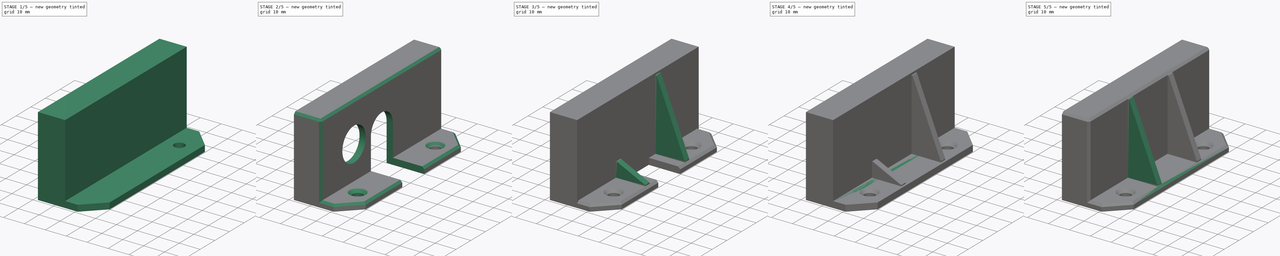
[diagram: build sequence overview — one tinted view per stage of 5, left to right]
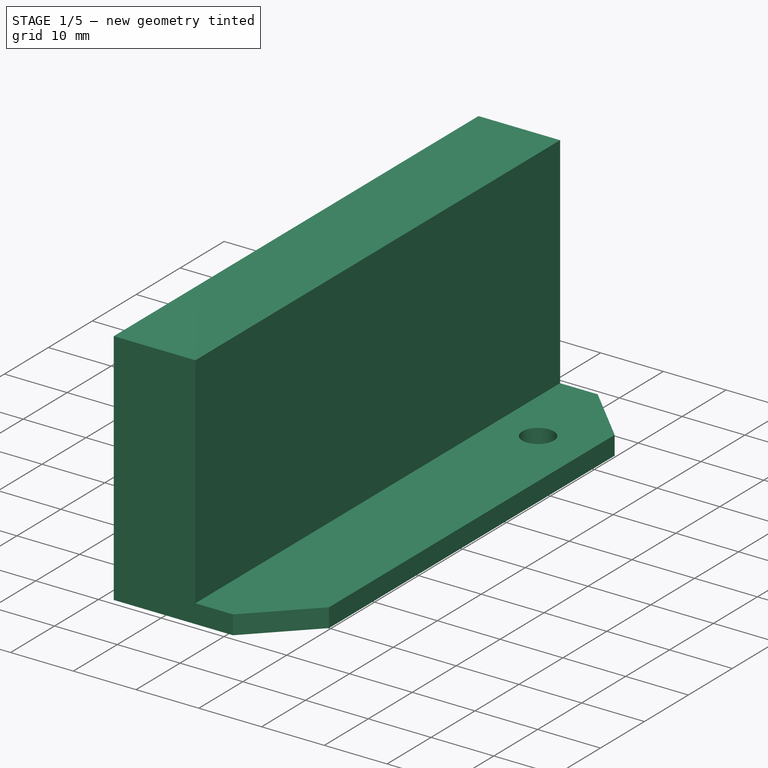
[diagram: stage 1 of 5 — iso view after this stage's code; geometry added in this stage tinted green]
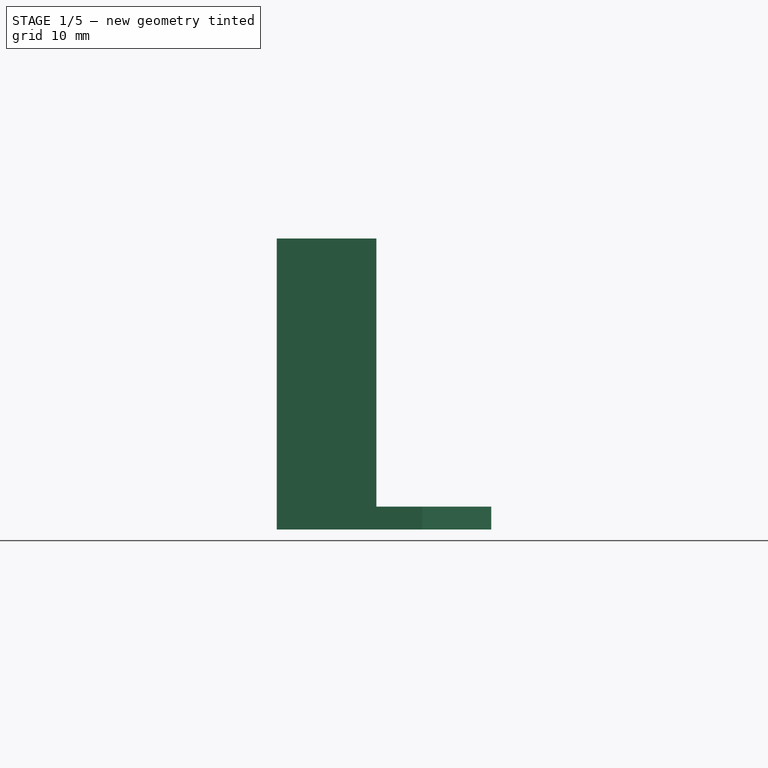
[diagram: stage 1 of 5 — front view after this stage's code; geometry added in this stage tinted green]
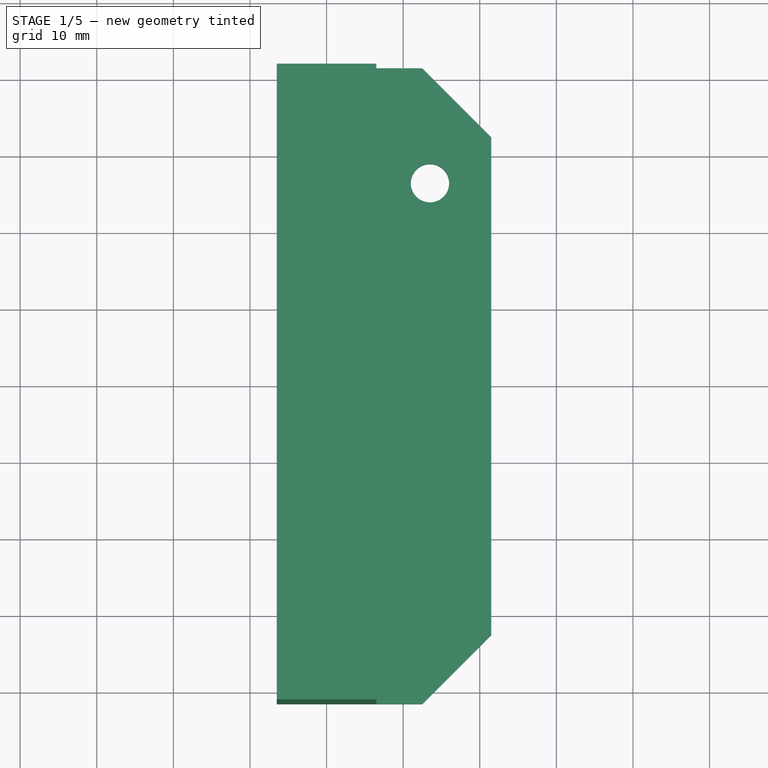
[diagram: stage 1 of 5 — top view after this stage's code; geometry added in this stage tinted green]
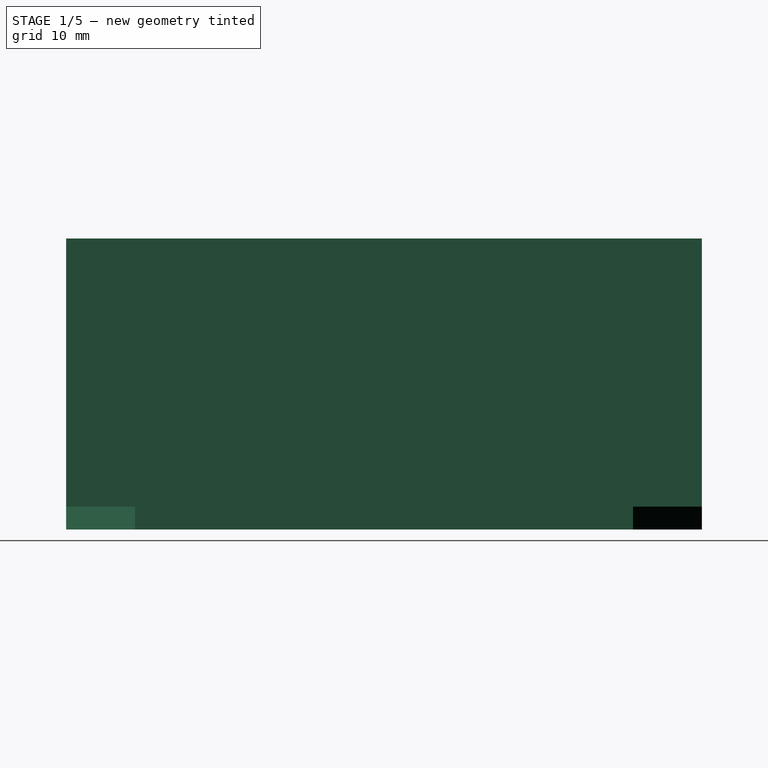
[diagram: stage 1 of 5 — right view after this stage's code; geometry added in this stage tinted green]
FCSTD DOCUMENT  (FreeCAD 0.21R33383 (Git))
Label: powerboard mount
License: All rights reserved
LicenseURL: https://en.wikipedia.org/wiki/All_rights_reserved
objects: Sketcher::SketchObject×12, PartDesign::Chamfer×11, PartDesign::Pad×6, PartDesign::Pocket×6, PartDesign::Mirrored×2, PartDesign::Body×2
note: 62 computed .brp shape members not serialized (recipe doc carries the construction recipe); baked Part::Feature solids carry a one-line shape summary decoded from their .brp

FEATURE [Sketcher::SketchObject] Sketch
  FullyConstrained = true
  MapMode = 5
  Support = -> [XY_Plane]
  sketch-geometry (4):
    g0: LineSegment StartX=-6.5 StartY=41.5 StartZ=0 EndX=6.5 EndY=41.5 EndZ=0
    g1: LineSegment StartX=6.5 StartY=41.5 StartZ=0 EndX=6.5 EndY=-41.5 EndZ=0
    g2: LineSegment StartX=6.5 StartY=-41.5 StartZ=0 EndX=-6.5 EndY=-41.5 EndZ=0
    g3: LineSegment StartX=-6.5 StartY=-41.5 StartZ=0 EndX=-6.5 EndY=41.5 EndZ=0
  constraints (11):
    c: Coincident(g0,g1)
    c: Coincident(g1,g2)
    c: Coincident(g2,g3)
    c: Coincident(g3,g0)
    c: Horizontal(g0)
    c: Horizontal(g2)
    c: Vertical(g1)
    c: Vertical(g3)
    c: DistanceY(g1,g1) = 83
    c: DistanceX(g0,g0) = 13
    c: Symmetric(g0,g1,g-1)
FEATURE [PartDesign::Pad] Pad
  Direction = (0,0,1)
  Length = 38
  Length2 = 10
  Profile = -> Sketch
  ReferenceAxis = -> Sketch [N_Axis]
  Type = 0
FEATURE [Sketcher::SketchObject] Sketch001
  ExternalGeometry = -> [Pad]
  FullyConstrained = true
  MapMode = 5
  Placement = pos=(0,0,0) rot=(1,0,0;3.14159rad)
  Support = -> [Pad]
  sketch-geometry (4):
    g0: LineSegment StartX=-6.5 StartY=38 StartZ=0 EndX=3.5 EndY=38 EndZ=0
    g1: LineSegment StartX=3.5 StartY=38 StartZ=0 EndX=3.5 EndY=-38 EndZ=0
    g2: LineSegment StartX=3.5 StartY=-38 StartZ=0 EndX=-6.5 EndY=-38 EndZ=0
    g3: LineSegment StartX=-6.5 StartY=-38 StartZ=0 EndX=-6.5 EndY=38 EndZ=0
  constraints (11):
    c: Coincident(g0,g1)
    c: Coincident(g1,g2)
    c: Coincident(g2,g3)
    c: Coincident(g3,g0)
    c: Horizontal(g0)
    c: Horizontal(g2)
    c: Vertical(g1)
    c: PointOnObject(g0,g-3)
    c: DistanceY(g1,g1) = 76
    c: DistanceX(g2,g2) = 10
    c: Symmetric(g0,g2,g-1)
FEATURE [PartDesign::Pocket] Pocket
  BaseFeature = -> Pad
  Direction = (0,0,1)
  Length = 35
  Length2 = 5
  Profile = -> Sketch001
  ReferenceAxis = -> Sketch001 [N_Axis]
  Type = 0
FEATURE [Sketcher::SketchObject] Sketch002
  ExternalGeometry = -> [Pocket]
  FullyConstrained = true
  MapMode = 5
  Placement = pos=(6.5,0,0) rot=(0.57735,0.57735,0.57735;2.0944rad)
  Support = -> [Pocket]
  sketch-geometry (4):
    g0: LineSegment StartX=-41.5 StartY=0 StartZ=0 EndX=41.5 EndY=0 EndZ=0
    g1: LineSegment StartX=41.5 StartY=0 StartZ=0 EndX=41.5 EndY=3 EndZ=0
    g2: LineSegment StartX=41.5 StartY=3 StartZ=0 EndX=-41.5 EndY=3 EndZ=0
    g3: LineSegment StartX=-41.5 StartY=3 StartZ=0 EndX=-41.5 EndY=0 EndZ=0
  constraints (11):
    c: Coincident(g0,g1)
    c: Coincident(g1,g2)
    c: Coincident(g2,g3)
    c: Coincident(g3,g0)
    c: Horizontal(g0)
    c: Horizontal(g2)
    c: Vertical(g1)
    c: Vertical(g3)
    c: Coincident(g0,g-3)
    c: PointOnObject(g1,g-4)
    c: DistanceY(g3,g3) = 3
FEATURE [PartDesign::Pad] Pad001
  BaseFeature = -> Pocket
  Direction = (1,0,0)
  Length = 15
  Length2 = 10
  Profile = -> Sketch002
  ReferenceAxis = -> Sketch002 [N_Axis]
  Type = 0
FEATURE [PartDesign::Chamfer] Chamfer
  Angle = 45
  Base = -> Pad001 [Edge35,Edge15]
  BaseFeature = -> Pad001
  ChamferType = 0
  FlipDirection = false
  Size = 9
  Size2 = 1
  SupportTransform = false
  UseAllEdges = false
FEATURE [Sketcher::SketchObject] Sketch003
  ExternalGeometry = -> [Chamfer]
  FullyConstrained = true
  MapMode = 5
  Placement = pos=(0,0,3) rot=(0,0,1;0rad)
  Support = -> [Chamfer]
  sketch-geometry (1):
    g0: Circle CenterX=13.5 CenterY=26.5 CenterZ=0 NormalX=0 NormalY=0 NormalZ=1 AngleXU=0 Radius=2.5
  constraints (3):
    c: DistanceX(g0,g-3) = 8
    c: DistanceY(g0,g-4) = 15
    c: Diameter(g0) = 5
FEATURE [PartDesign::Pocket] Pocket001
  BaseFeature = -> Chamfer
  Direction = (0,0,-1)
  Length = 5
  Length2 = 5
  Profile = -> Sketch003
  ReferenceAxis = -> Sketch003 [N_Axis]
  Type = 0
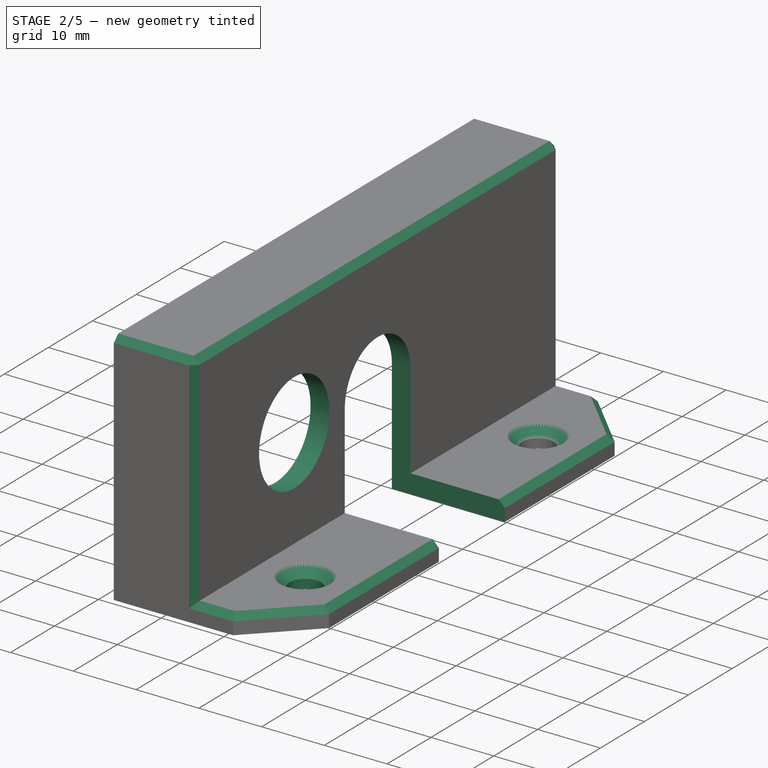
[diagram: stage 2 of 5 — iso view after this stage's code; geometry added in this stage tinted green]
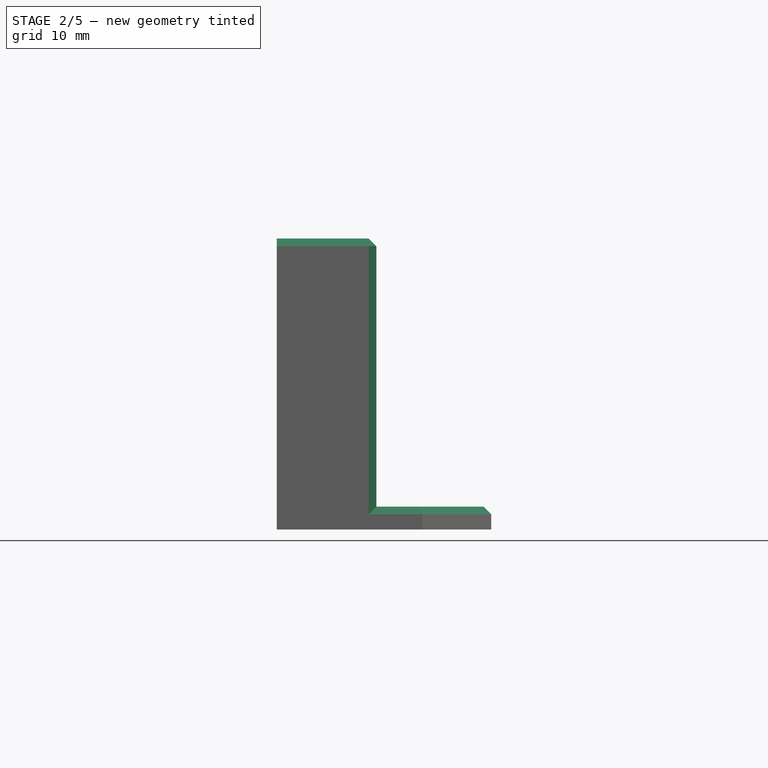
[diagram: stage 2 of 5 — front view after this stage's code; geometry added in this stage tinted green]
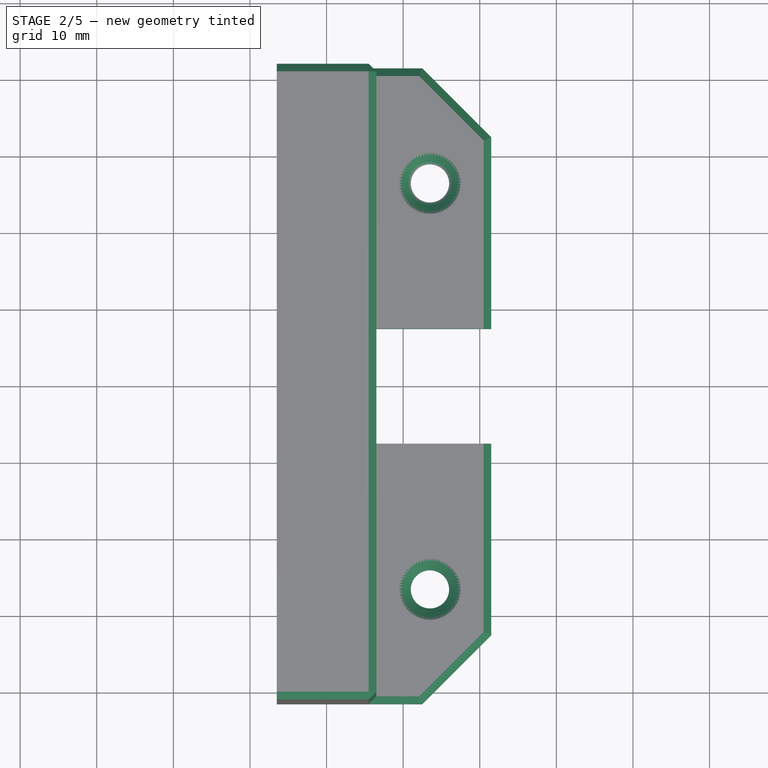
[diagram: stage 2 of 5 — top view after this stage's code; geometry added in this stage tinted green]
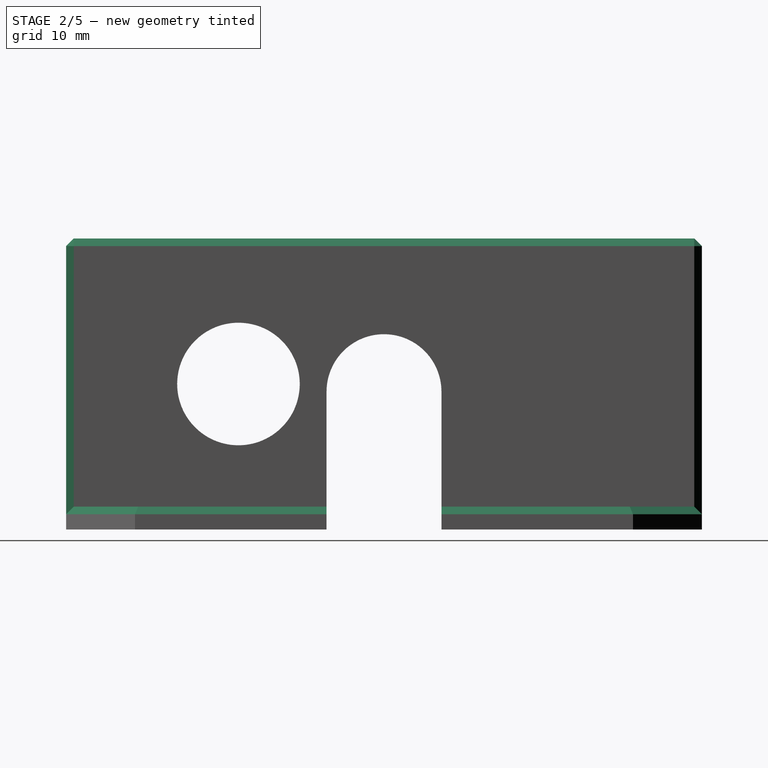
[diagram: stage 2 of 5 — right view after this stage's code; geometry added in this stage tinted green]
FEATURE [PartDesign::Chamfer] Chamfer001
  Angle = 45
  Base = -> Pocket001 [Edge21]
  BaseFeature = -> Pocket001
  ChamferType = 0
  FlipDirection = false
  Size = 1.5
  Size2 = 1
  SupportTransform = false
  UseAllEdges = false
FEATURE [PartDesign::Mirrored] Mirrored
  BaseFeature = -> Chamfer001
  MirrorPlane = -> XZ_Plane
  Originals = -> [Chamfer001,Pocket001]
FEATURE [PartDesign::Chamfer] Chamfer002
  Angle = 45
  Base = -> Mirrored [Edge35,Edge32,Edge15,Edge16,Edge14]
  BaseFeature = -> Mirrored
  ChamferType = 0
  FlipDirection = false
  Size = 1
  Size2 = 1
  SupportTransform = false
  UseAllEdges = false
FEATURE [PartDesign::Chamfer] Chamfer003
  Angle = 45
  Base = -> Chamfer002 [Edge8,Edge7,Edge6,Edge5,Edge4]
  BaseFeature = -> Chamfer002
  ChamferType = 0
  FlipDirection = false
  Size = 1
  Size2 = 1
  SupportTransform = false
  UseAllEdges = false
FEATURE [Sketcher::SketchObject] Sketch010
  ExternalGeometry = -> [Chamfer003]
  FullyConstrained = true
  MapMode = 5
  Placement = pos=(21.5,0,0) rot=(0.57735,0.57735,0.57735;2.0944rad)
  Support = -> [Chamfer003]
  sketch-geometry (5):
    g0: LineSegment StartX=-7.5 StartY=0 StartZ=0 EndX=7.5 EndY=0 EndZ=0
    g1: LineSegment StartX=7.5 StartY=0 StartZ=0 EndX=7.5 EndY=18 EndZ=0
    g2: LineSegment StartX=-7.5 StartY=18 StartZ=0 EndX=-7.5 EndY=0 EndZ=0
    g3: Circle CenterX=-19 CenterY=19 CenterZ=0 NormalX=0 NormalY=0 NormalZ=1 AngleXU=0 Radius=8
    g4: ArcOfCircle CenterX=3e-16 CenterY=18 CenterZ=0 NormalX=0 NormalY=0 NormalZ=1 AngleXU=0 Radius=7.5 StartAngle=2.88007e-09 EndAngle=3.14159
  constraints (15):
    c: Coincident(g0,g1)
    c: Coincident(g2,g0)
    c: Horizontal(g0)
    c: PointOnObject(g0,g-3)
    c: Diameter(g3) = 16
    c: DistanceY(g-3,g3) = 19
    c: Vertical(g1)
    c: Vertical(g2)
    c: Symmetric(g2,g1,g-2)
    c: DistanceX(g0,g0) = 15
    c: Coincident(g4,g2)
    c: Coincident(g4,g1)
    c: DistanceY(g1,g1) = 18
    c: Radius(g4) = 7.5
    c: DistanceX(g3,g4) = 19
FEATURE [PartDesign::Pocket] Pocket005
  BaseFeature = -> Chamfer003
  Direction = (-1,0,0)
  Length = 5
  Length2 = 5
  Profile = -> Sketch010
  ReferenceAxis = -> Sketch010 [N_Axis]
  Type = 1
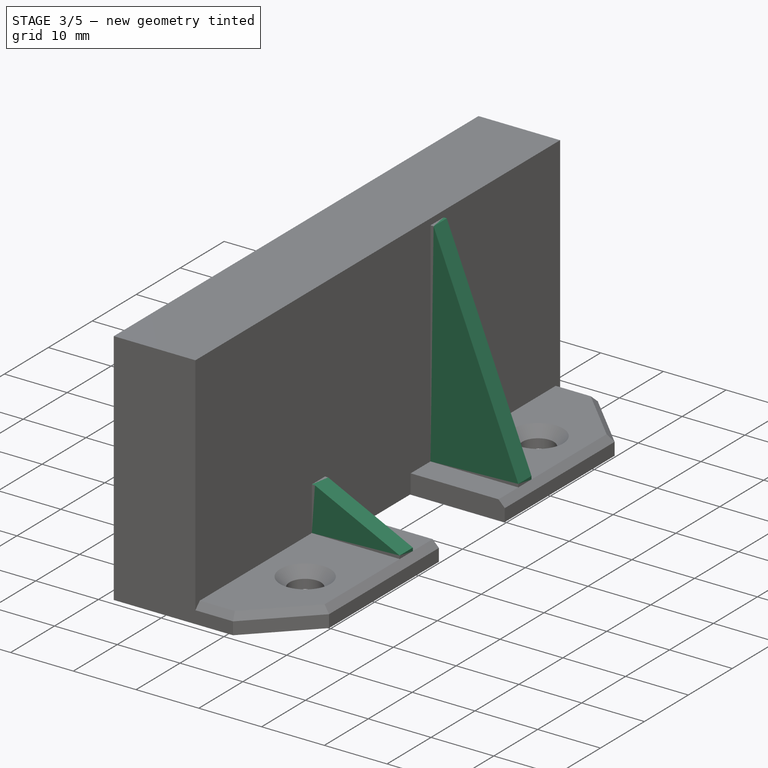
[diagram: stage 3 of 5 — iso view after this stage's code; geometry added in this stage tinted green]
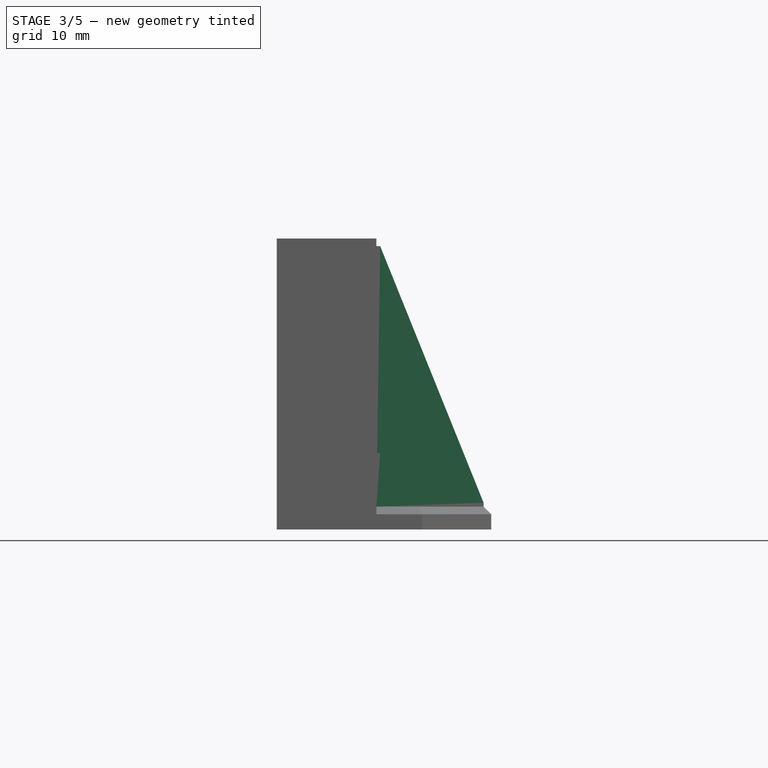
[diagram: stage 3 of 5 — front view after this stage's code; geometry added in this stage tinted green]
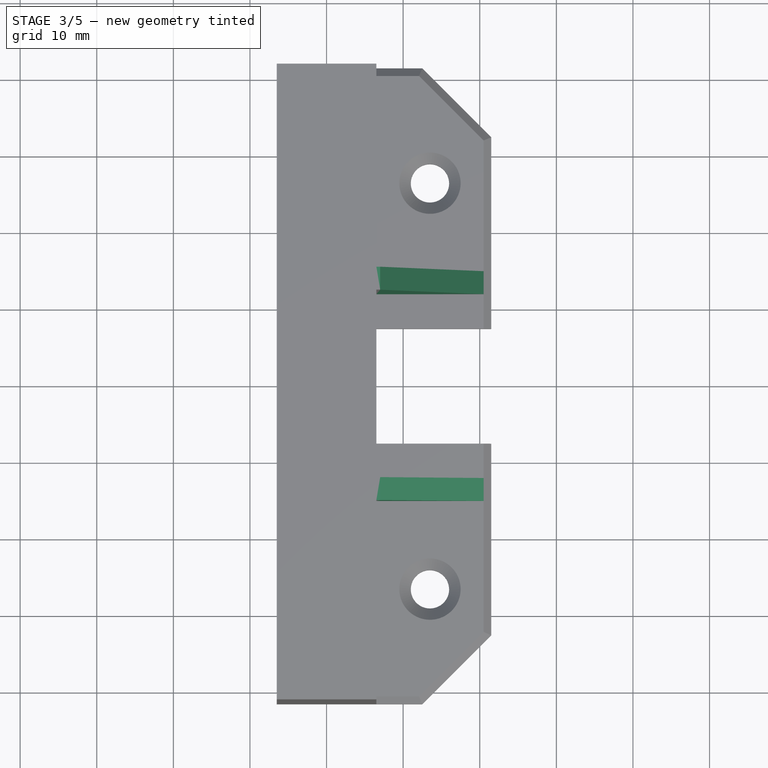
[diagram: stage 3 of 5 — top view after this stage's code; geometry added in this stage tinted green]
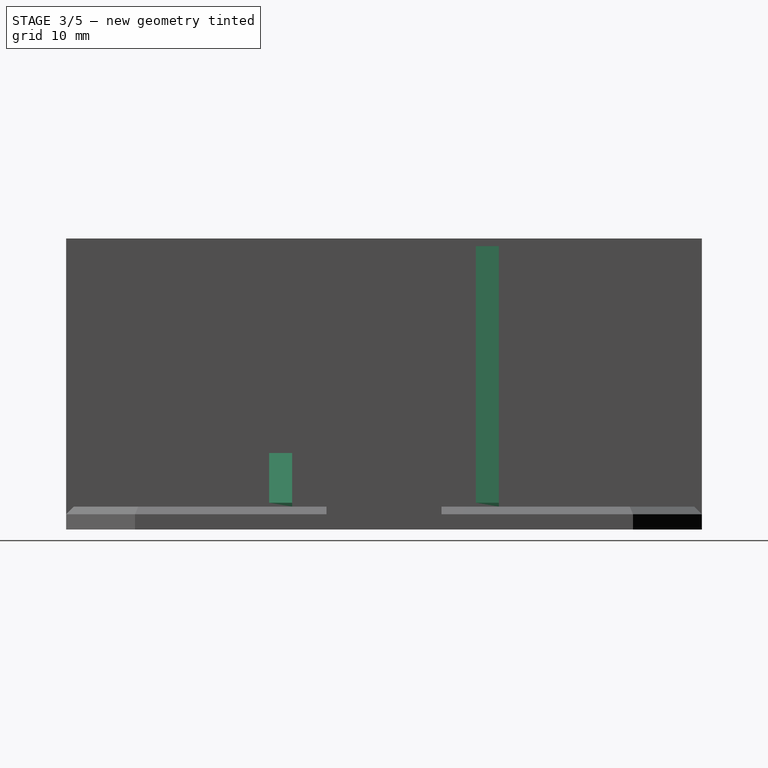
[diagram: stage 3 of 5 — right view after this stage's code; geometry added in this stage tinted green]
FEATURE [Sketcher::SketchObject] Sketch004
  FullyConstrained = true
  MapMode = 5
  Support = -> [XY_Plane001]
  sketch-geometry (4):
    g0: LineSegment StartX=-6.5 StartY=41.5 StartZ=0 EndX=6.5 EndY=41.5 EndZ=0
    g1: LineSegment StartX=6.5 StartY=41.5 StartZ=0 EndX=6.5 EndY=-41.5 EndZ=0
    g2: LineSegment StartX=6.5 StartY=-41.5 StartZ=0 EndX=-6.5 EndY=-41.5 EndZ=0
    g3: LineSegment StartX=-6.5 StartY=-41.5 StartZ=0 EndX=-6.5 EndY=41.5 EndZ=0
  constraints (11):
    c: Coincident(g0,g1)
    c: Coincident(g1,g2)
    c: Coincident(g2,g3)
    c: Coincident(g3,g0)
    c: Horizontal(g0)
    c: Horizontal(g2)
    c: Vertical(g1)
    c: Vertical(g3)
    c: DistanceY(g1,g1) = 83
    c: DistanceX(g0,g0) = 13
    c: Symmetric(g0,g1,g-1)
FEATURE [PartDesign::Pad] Pad002
  Direction = (0,0,1)
  Length = 38
  Length2 = 10
  Profile = -> Sketch004
  ReferenceAxis = -> Sketch004 [N_Axis]
  Type = 0
FEATURE [Sketcher::SketchObject] Sketch005
  ExternalGeometry = -> [Pad002]
  FullyConstrained = true
  MapMode = 5
  Placement = pos=(0,0,0) rot=(1,0,0;3.14159rad)
  Support = -> [Pad002]
  sketch-geometry (4):
    g0: LineSegment StartX=-6.5 StartY=38 StartZ=0 EndX=3.5 EndY=38 EndZ=0
    g1: LineSegment StartX=3.5 StartY=38 StartZ=0 EndX=3.5 EndY=-38 EndZ=0
    g2: LineSegment StartX=3.5 StartY=-38 StartZ=0 EndX=-6.5 EndY=-38 EndZ=0
    g3: LineSegment StartX=-6.5 StartY=-38 StartZ=0 EndX=-6.5 EndY=38 EndZ=0
  constraints (11):
    c: Coincident(g0,g1)
    c: Coincident(g1,g2)
    c: Coincident(g2,g3)
    c: Coincident(g3,g0)
    c: Horizontal(g0)
    c: Horizontal(g2)
    c: Vertical(g1)
    c: PointOnObject(g0,g-3)
    c: DistanceY(g1,g1) = 76
    c: DistanceX(g2,g2) = 10
    c: Symmetric(g0,g2,g-1)
FEATURE [PartDesign::Pocket] Pocket002
  BaseFeature = -> Pad002
  Direction = (0,0,1)
  Length = 35
  Length2 = 5
  Profile = -> Sketch005
  ReferenceAxis = -> Sketch005 [N_Axis]
  Type = 0
FEATURE [PartDesign::Body] Body001
  Group = -> [Sketch004,Pad002,Sketch005,Pocket002,Sketch006,Pad003,Chamfer004,Sketch007,Pocket003,Chamfer005,Mirrored001,Chamfer006,Chamfer007,Sketch008,Pocket004,Sketch009,Pad004,Chamfer008]
  Origin = -> Origin001
  Tip = -> Chamfer008
FEATURE [PartDesign::Pad] Pad005
  BaseFeature = -> Pocket005
  Direction = (1,0,0)
  Length = 14
  Length2 = 10
  Profile = -> Sketch011
  ReferenceAxis = -> Sketch011 [N_Axis]
  Type = 0
FEATURE [PartDesign::Chamfer] Chamfer009
  Angle = 45
  Base = -> Pad005 [Edge105]
  BaseFeature = -> Pad005
  ChamferType = 1
  FlipDirection = false
  Size = 13.5
  Size2 = 33.5
  SupportTransform = false
  UseAllEdges = false
FEATURE [PartDesign::Chamfer] Chamfer010
  Angle = 45
  Base = -> Chamfer009 [Edge52]
  BaseFeature = -> Chamfer009
  ChamferType = 1
  FlipDirection = false
  Size = 13.5
  Size2 = 6.5
  SupportTransform = false
  UseAllEdges = false
FEATURE [PartDesign::Body] Body
  Group = -> [Sketch,Pad,Sketch001,Pocket,Sketch002,Pad001,Chamfer,Sketch003,Pocket001,Chamfer001,Mirrored,Chamfer002,Chamfer003,Sketch010,Pocket005,Sketch011,Pad005,Chamfer009,Chamfer010]
  Origin = -> Origin
  Tip = -> Chamfer010
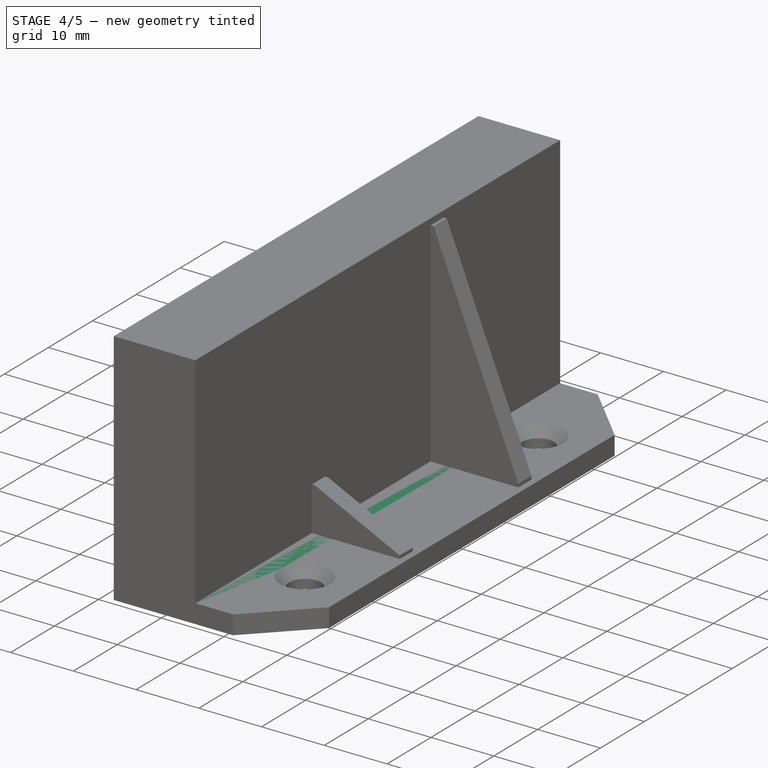
[diagram: stage 4 of 5 — iso view after this stage's code; geometry added in this stage tinted green]
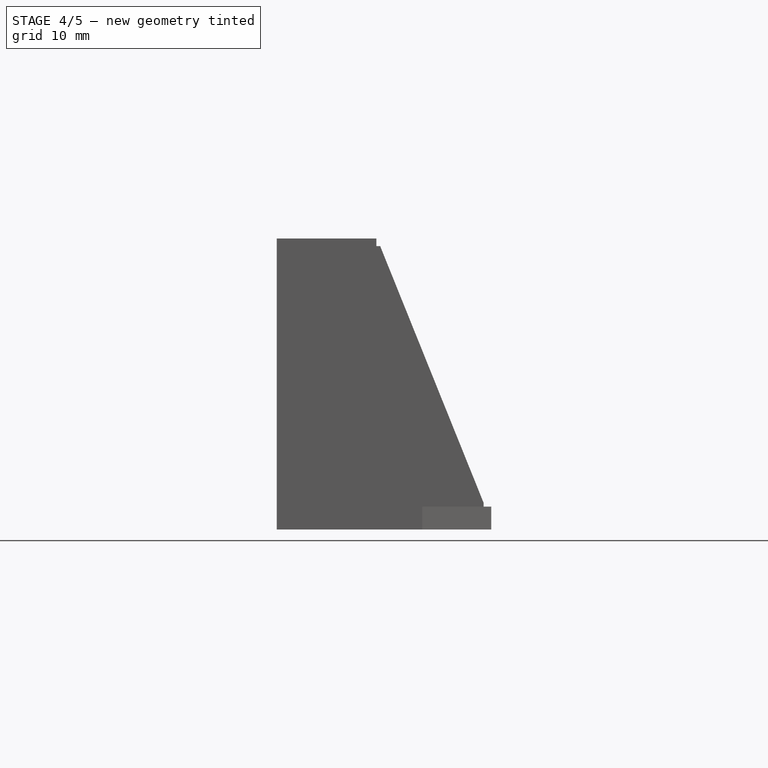
[diagram: stage 4 of 5 — front view after this stage's code; geometry added in this stage tinted green]
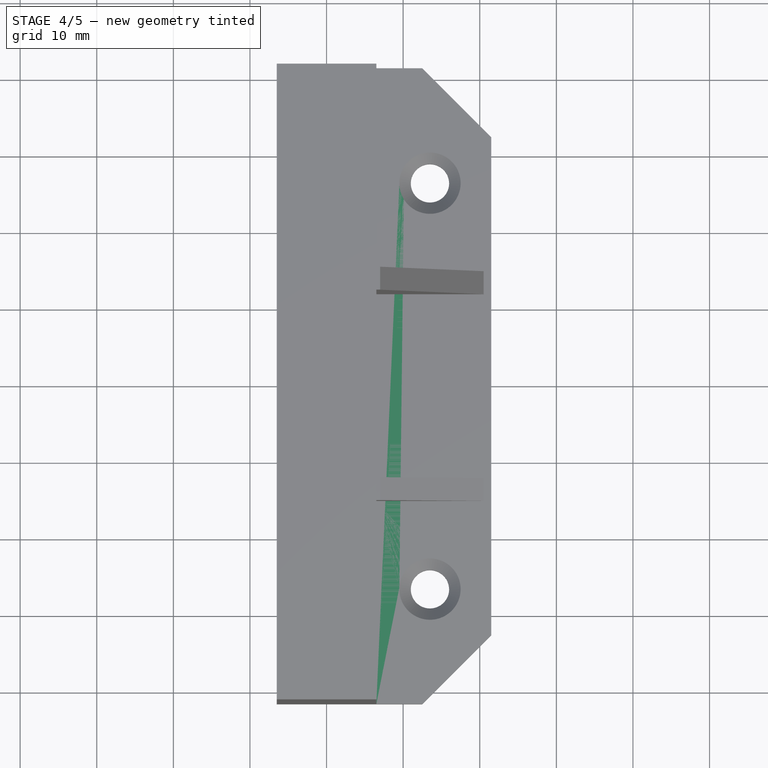
[diagram: stage 4 of 5 — top view after this stage's code; geometry added in this stage tinted green]
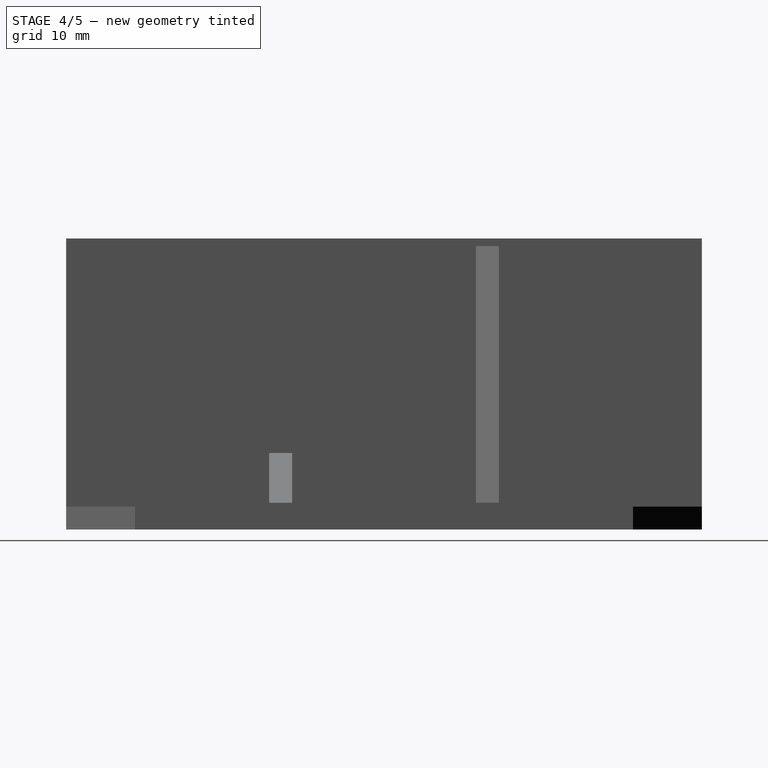
[diagram: stage 4 of 5 — right view after this stage's code; geometry added in this stage tinted green]
FEATURE [Sketcher::SketchObject] Sketch006
  ExternalGeometry = -> [Pocket002]
  FullyConstrained = true
  MapMode = 5
  Placement = pos=(6.5,0,0) rot=(0.57735,0.57735,0.57735;2.0944rad)
  Support = -> [Pocket002]
  sketch-geometry (4):
    g0: LineSegment StartX=-41.5 StartY=0 StartZ=0 EndX=41.5 EndY=0 EndZ=0
    g1: LineSegment StartX=41.5 StartY=0 StartZ=0 EndX=41.5 EndY=3 EndZ=0
    g2: LineSegment StartX=41.5 StartY=3 StartZ=0 EndX=-41.5 EndY=3 EndZ=0
    g3: LineSegment StartX=-41.5 StartY=3 StartZ=0 EndX=-41.5 EndY=0 EndZ=0
  constraints (11):
    c: Coincident(g0,g1)
    c: Coincident(g1,g2)
    c: Coincident(g2,g3)
    c: Coincident(g3,g0)
    c: Horizontal(g0)
    c: Horizontal(g2)
    c: Vertical(g1)
    c: Vertical(g3)
    c: Coincident(g0,g-3)
    c: PointOnObject(g1,g-4)
    c: DistanceY(g3,g3) = 3
FEATURE [PartDesign::Pad] Pad003
  BaseFeature = -> Pocket002
  Direction = (1,0,0)
  Length = 15
  Length2 = 10
  Profile = -> Sketch006
  ReferenceAxis = -> Sketch006 [N_Axis]
  Type = 0
FEATURE [PartDesign::Chamfer] Chamfer004
  Angle = 45
  Base = -> Pad003 [Edge35,Edge15]
  BaseFeature = -> Pad003
  ChamferType = 0
  FlipDirection = false
  Size = 9
  Size2 = 1
  SupportTransform = false
  UseAllEdges = false
FEATURE [Sketcher::SketchObject] Sketch007
  ExternalGeometry = -> [Chamfer004]
  FullyConstrained = true
  MapMode = 5
  Placement = pos=(0,0,3) rot=(0,0,1;0rad)
  Support = -> [Chamfer004]
  sketch-geometry (1):
    g0: Circle CenterX=13.5 CenterY=26.5 CenterZ=0 NormalX=0 NormalY=0 NormalZ=1 AngleXU=0 Radius=2.5
  constraints (3):
    c: DistanceX(g0,g-3) = 8
    c: DistanceY(g0,g-4) = 15
    c: Diameter(g0) = 5
FEATURE [PartDesign::Pocket] Pocket003
  BaseFeature = -> Chamfer004
  Direction = (0,0,-1)
  Length = 5
  Length2 = 5
  Profile = -> Sketch007
  ReferenceAxis = -> Sketch007 [N_Axis]
  Type = 0
FEATURE [PartDesign::Chamfer] Chamfer005
  Angle = 45
  Base = -> Pocket003 [Edge21]
  BaseFeature = -> Pocket003
  ChamferType = 0
  FlipDirection = false
  Size = 1.5
  Size2 = 1
  SupportTransform = false
  UseAllEdges = false
FEATURE [PartDesign::Mirrored] Mirrored001
  BaseFeature = -> Chamfer005
  MirrorPlane = -> XZ_Plane001
  Originals = -> [Chamfer005,Pocket003]
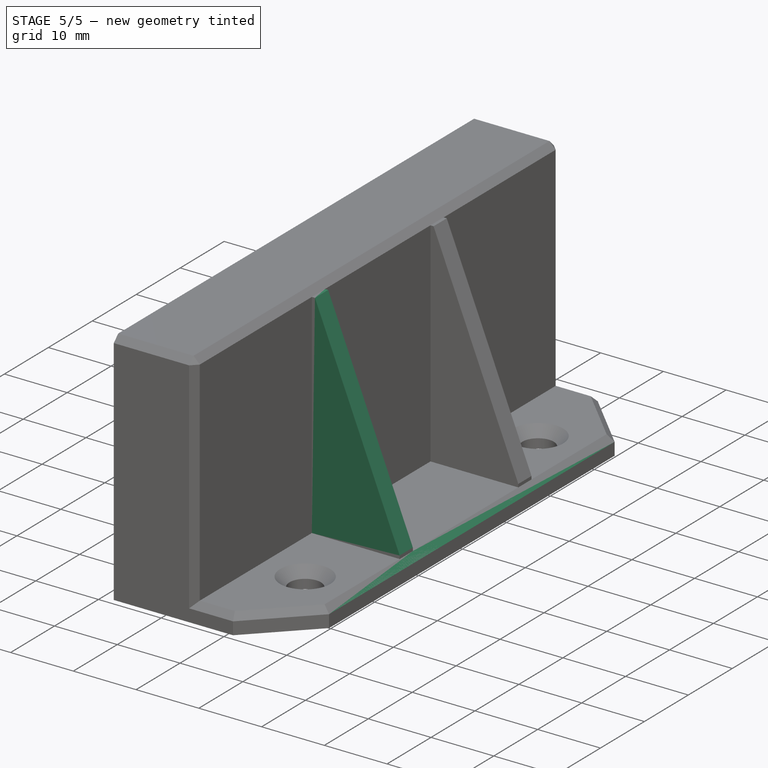
[diagram: stage 5 of 5 — iso view after this stage's code; geometry added in this stage tinted green]
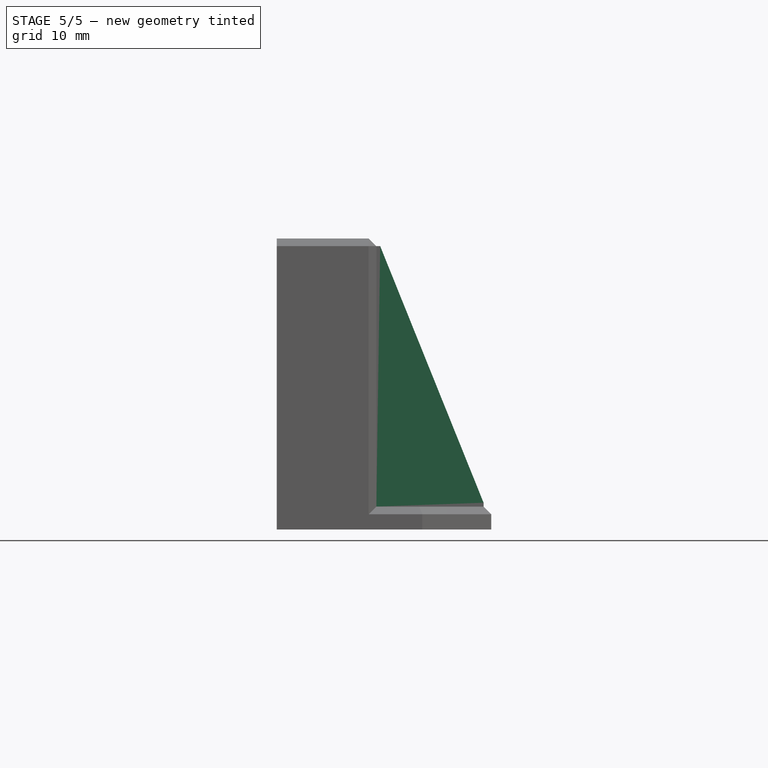
[diagram: stage 5 of 5 — front view after this stage's code; geometry added in this stage tinted green]
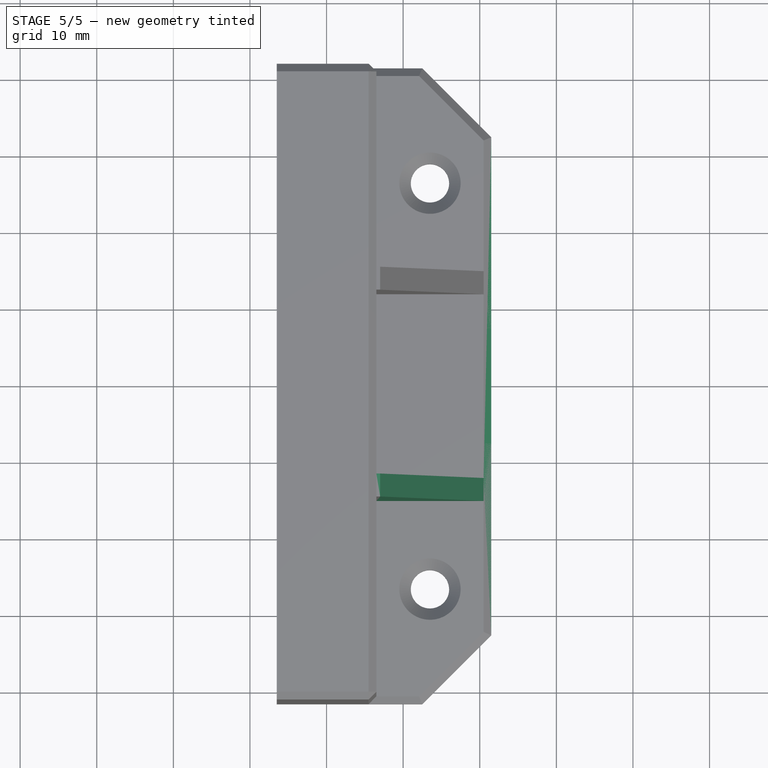
[diagram: stage 5 of 5 — top view after this stage's code; geometry added in this stage tinted green]
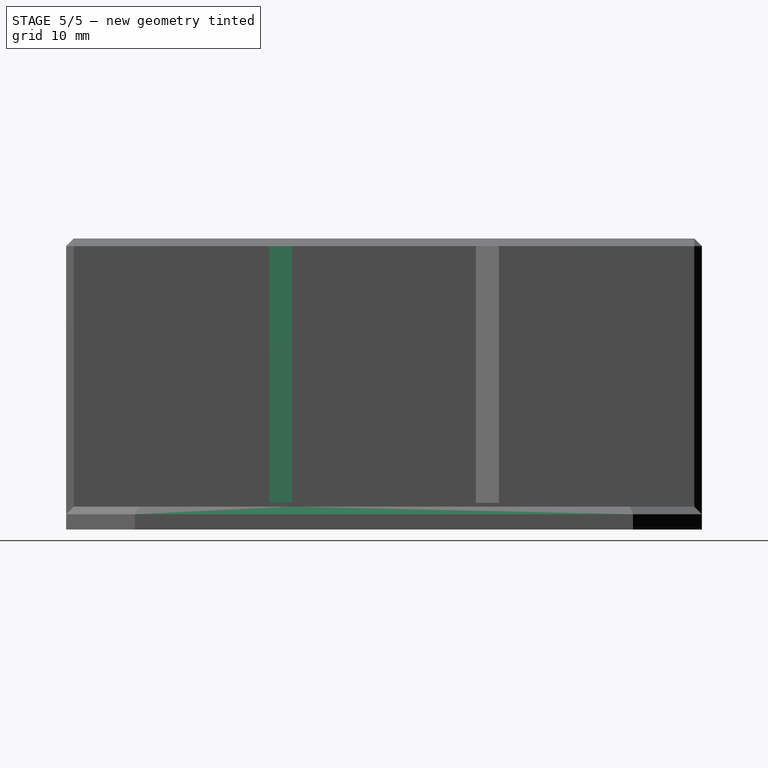
[diagram: stage 5 of 5 — right view after this stage's code; geometry added in this stage tinted green]
FEATURE [PartDesign::Chamfer] Chamfer006
  Angle = 45
  Base = -> Mirrored001 [Edge35,Edge32,Edge15,Edge16,Edge14]
  BaseFeature = -> Mirrored001
  ChamferType = 0
  FlipDirection = false
  Size = 1
  Size2 = 1
  SupportTransform = false
  UseAllEdges = false
FEATURE [PartDesign::Chamfer] Chamfer007
  Angle = 45
  Base = -> Chamfer006 [Edge8,Edge7,Edge6,Edge5,Edge4]
  BaseFeature = -> Chamfer006
  ChamferType = 0
  FlipDirection = false
  Size = 1
  Size2 = 1
  SupportTransform = false
  UseAllEdges = false
FEATURE [Sketcher::SketchObject] Sketch008
  ExternalGeometry = -> [Chamfer007]
  FullyConstrained = false
  MapMode = 5
  Placement = pos=(0,0,38) rot=(0,0,1;0rad)
  Support = -> [Chamfer007]
  sketch-geometry (2):
    g0: LineSegment StartX=-19.5 StartY=4.2541 StartZ=0 EndX=-19.5 EndY=40.389 EndZ=0
    g1: Circle CenterX=-19.5 CenterY=13.25 CenterZ=0 NormalX=0 NormalY=0 NormalZ=1 AngleXU=0 Radius=20
  constraints (5):
    c: Vertical(g0)
    c: DistanceX(g0,g-3) = 13
    c: PointOnObject(g1,g0)
    c: Diameter(g1) = 40
    c: DistanceY(g1,g-3) = 27.25
FEATURE [PartDesign::Pocket] Pocket004
  BaseFeature = -> Chamfer007
  Direction = (0,0,-1)
  Length = 5
  Length2 = 5
  Profile = -> Sketch008
  ReferenceAxis = -> Sketch008 [N_Axis]
  Type = 0
FEATURE [Sketcher::SketchObject] Sketch009
  ExternalGeometry = -> [Pocket004]
  FullyConstrained = false
  MapMode = 5
  Placement = pos=(6.5,0,0) rot=(0.57735,0.57735,0.57735;2.0944rad)
  Support = -> [Pocket004]
  sketch-geometry (8):
    g0: LineSegment StartX=12 StartY=37 StartZ=0 EndX=15 EndY=36.9878 EndZ=0
    g1: LineSegment StartX=15 StartY=36.9878 StartZ=0 EndX=15 EndY=2.9878 EndZ=0
    g2: LineSegment StartX=15 StartY=2.9878 StartZ=0 EndX=12 EndY=2.9878 EndZ=0
    g3: LineSegment StartX=12 StartY=2.9878 StartZ=0 EndX=12 EndY=37 EndZ=0
    g4: LineSegment StartX=-15 StartY=37 StartZ=0 EndX=-12 EndY=37 EndZ=0
    g5: LineSegment StartX=-12 StartY=37 StartZ=0 EndX=-12 EndY=3 EndZ=0
    g6: LineSegment StartX=-12 StartY=3 StartZ=0 EndX=-15 EndY=3 EndZ=0
    g7: LineSegment StartX=-15 StartY=3 StartZ=0 EndX=-15 EndY=37 EndZ=0
  constraints (22):
    c: Coincident(g0,g1)
    c: Coincident(g1,g2)
    c: Coincident(g2,g3)
    c: Coincident(g3,g0)
    c: Horizontal(g2)
    c: Vertical(g1)
    c: Vertical(g3)
    c: DistanceY(g1,g1) = 34
    c: DistanceX(g0,g0) = 3
    c: DistanceX(g-1,g0) = 12
    c: Coincident(g4,g5)
    c: Coincident(g5,g6)
    c: Coincident(g6,g7)
    c: Coincident(g7,g4)
    c: Horizontal(g4)
    c: Horizontal(g6)
    c: Vertical(g5)
    c: Vertical(g7)
    c: PointOnObject(g4,g-3)
    c: PointOnObject(g5,g-4)
    c: DistanceX(g4,g4) = 3
    c: DistanceX(g4,g-1) = 12
FEATURE [PartDesign::Pad] Pad004
  BaseFeature = -> Pocket004
  Direction = (1,0,0)
  Length = 14
  Length2 = 10
  Profile = -> Sketch009
  ReferenceAxis = -> Sketch009 [N_Axis]
  Type = 0
FEATURE [Sketcher::SketchObject] Sketch011
  ExternalGeometry = -> [Pocket005]
  FullyConstrained = true
  MapMode = 5
  Placement = pos=(6.5,0,0) rot=(0.57735,0.57735,0.57735;2.0944rad)
  Support = -> [Pocket005]
  sketch-geometry (8):
    g0: LineSegment StartX=12 StartY=37 StartZ=0 EndX=15 EndY=37 EndZ=0
    g1: LineSegment StartX=15 StartY=37 StartZ=0 EndX=15 EndY=3 EndZ=0
    g2: LineSegment StartX=15 StartY=3 StartZ=0 EndX=12 EndY=3 EndZ=0
    g3: LineSegment StartX=12 StartY=3 StartZ=0 EndX=12 EndY=37 EndZ=0
    g4: LineSegment StartX=-15 StartY=3 StartZ=0 EndX=-12 EndY=3 EndZ=0
    g5: LineSegment StartX=-12 StartY=3 StartZ=0 EndX=-12 EndY=10 EndZ=0
    g6: LineSegment StartX=-12 StartY=10 StartZ=0 EndX=-15 EndY=10 EndZ=0
    g7: LineSegment StartX=-15 StartY=10 StartZ=0 EndX=-15 EndY=3 EndZ=0
  constraints (24):
    c: Coincident(g0,g1)
    c: Coincident(g1,g2)
    c: Coincident(g2,g3)
    c: Coincident(g3,g0)
    c: Horizontal(g0)
    c: Horizontal(g2)
    c: Vertical(g1)
    c: Vertical(g3)
    c: PointOnObject(g0,g-3)
    c: DistanceY(g1,g1) = 34
    c: DistanceX(g0,g0) = 3
    c: DistanceX(g-1,g2) = 12
    c: Coincident(g4,g5)
    c: Coincident(g5,g6)
    c: Coincident(g6,g7)
    c: Coincident(g7,g4)
    c: Horizontal(g4)
    c: Horizontal(g6)
    c: Vertical(g5)
    c: Vertical(g7)
    c: PointOnObject(g4,g-4)
    c: DistanceX(g6,g6) = 3
    c: DistanceY(g5,g5) = 7
    c: DistanceX(g4,g-1) = 12
FEATURE [PartDesign::Chamfer] Chamfer008
  Angle = 45
  Base = -> Pad004 [Edge35,Edge41]
  BaseFeature = -> Pad004
  ChamferType = 1
  FlipDirection = false
  Size = 33.5
  Size2 = 13.5
  SupportTransform = false
  UseAllEdges = false
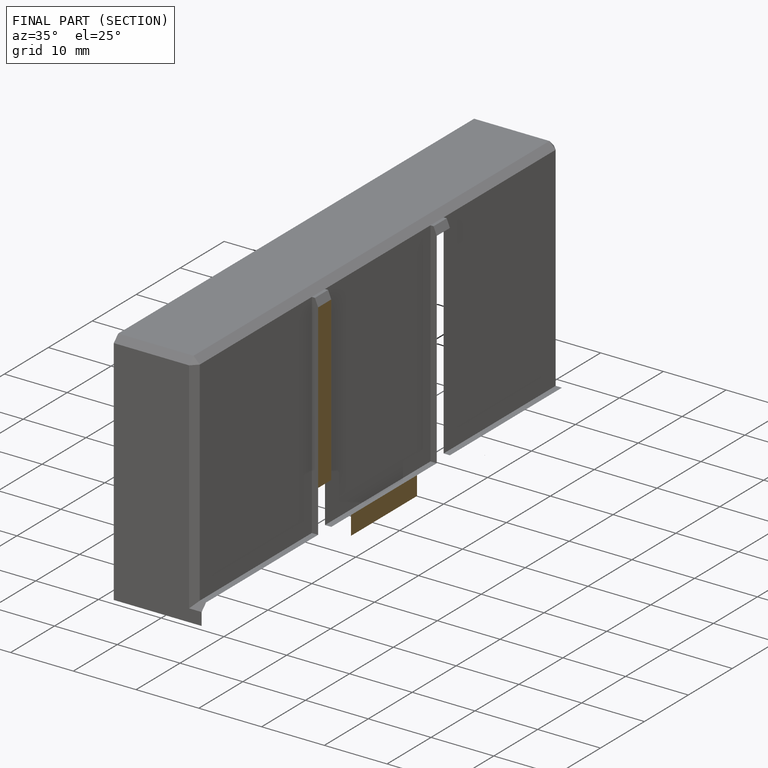
[diagram: finished part — half-section view (interior)]
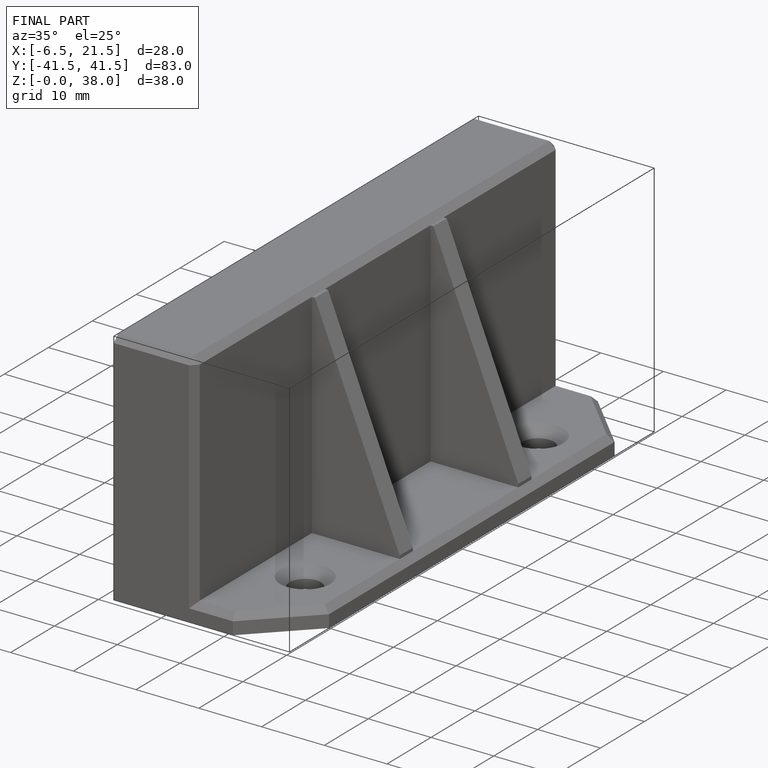
[diagram: finished part — iso view with bounding-box wireframe]
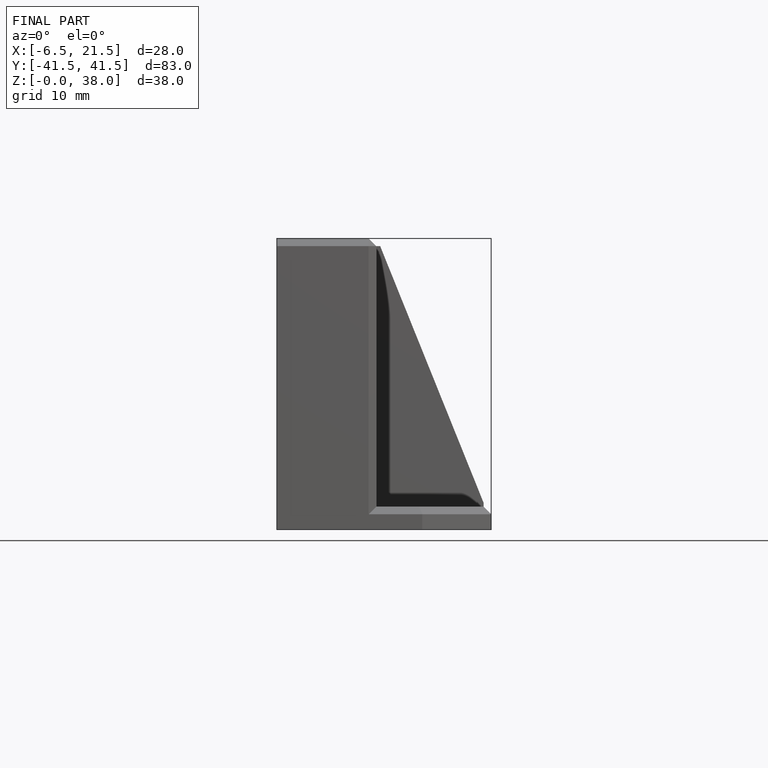
[diagram: finished part — front view with bounding-box wireframe]
